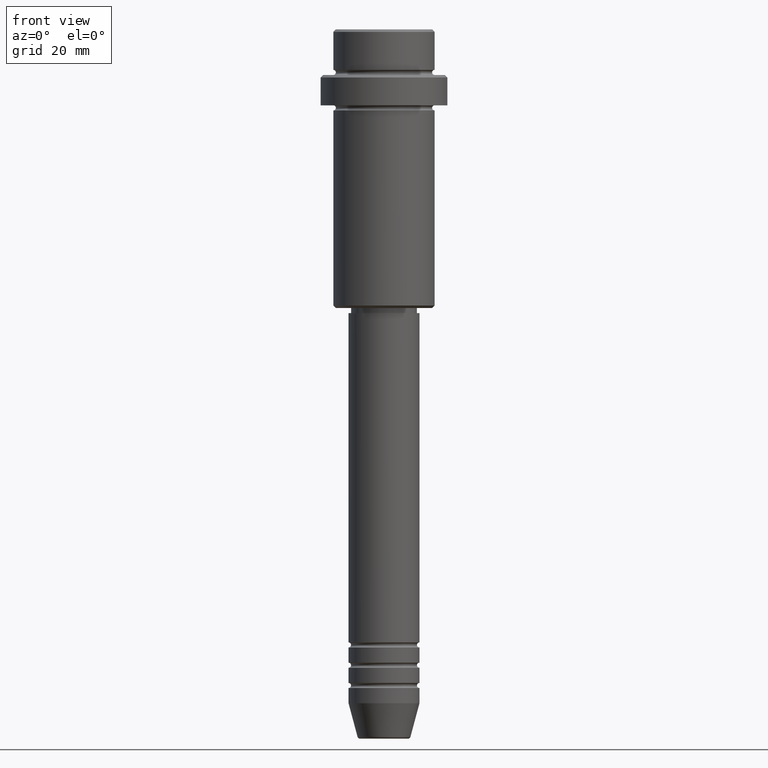
[diagram: clean part render]
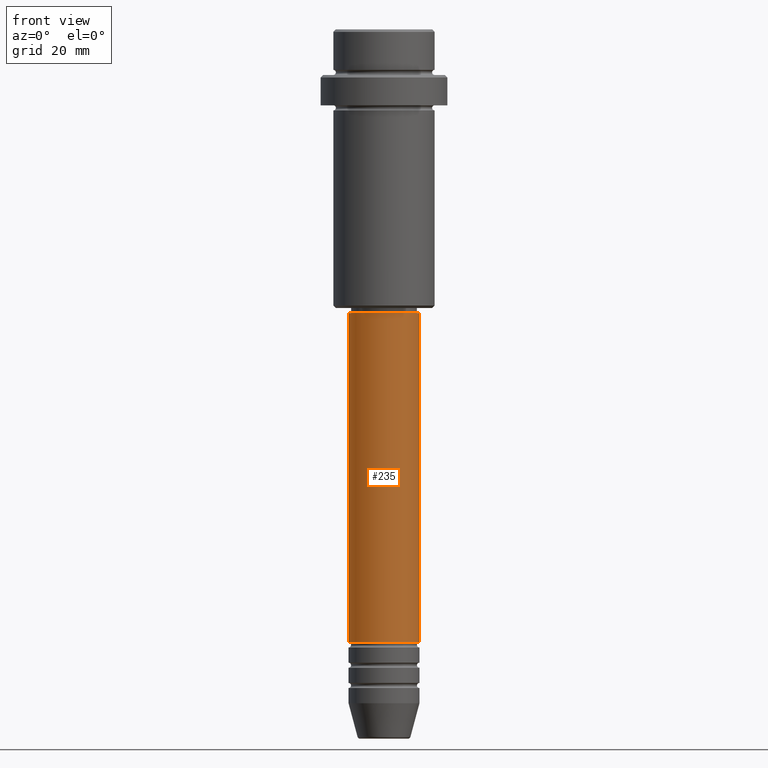
[diagram: same view with one face highlighted and labeled with its STEP entity id]
A machine part, front view. The second image highlights one B-rep face of the part: STEP entity #235.
In plain terms, the highlighted cylindrical surface (edge-blend (fillet) strip) has radius 7 mm, axis along (-0, -0, 1).
Its self-contained STEP definition (entity closure, byte-faithful):
#38 = CIRCLE ( 'NONE', #423, 7.000000000000000000 ) ;
#40 = LINE ( 'NONE', #1030, #440 ) ;
#105 = AXIS2_PLACEMENT_3D ( 'NONE', #416, #751, #846 ) ;
#235 = ADVANCED_FACE ( 'NONE', ( #1088 ), #434, .T. ) ;
#327 = VERTEX_POINT ( 'NONE', #1031 ) ;
#362 = ORIENTED_EDGE ( 'NONE', *, *, #748, .T. ) ;
#392 = CARTESIAN_POINT ( 'NONE',  ( -7.000000000000000000, 8.572527594031473190E-16, 0.000000000000000000 ) ) ;
#416 = CARTESIAN_POINT ( 'NONE',  ( 0.000000000000000000, 0.000000000000000000, 0.000000000000000000 ) ) ;
#423 = AXIS2_PLACEMENT_3D ( 'NONE', #515, #523, #957 ) ;
#434 = CYLINDRICAL_SURFACE ( 'NONE', #105, 7.000000000000000000 ) ;
#440 = VECTOR ( 'NONE', #483, 1000.000000000000000 ) ;
#482 = VERTEX_POINT ( 'NONE', #1303 ) ;
#483 = DIRECTION ( 'NONE',  ( -0.000000000000000000, -0.000000000000000000, 1.000000000000000000 ) ) ;
#515 = CARTESIAN_POINT ( 'NONE',  ( 0.000000000000000000, 0.000000000000000000, -56.00000000000000711 ) ) ;
#523 = DIRECTION ( 'NONE',  ( -0.000000000000000000, -0.000000000000000000, 1.000000000000000000 ) ) ;
#611 = ORIENTED_EDGE ( 'NONE', *, *, #1329, .F. ) ;
#668 = CIRCLE ( 'NONE', #1105, 7.000000000000000000 ) ;
#722 = CARTESIAN_POINT ( 'NONE',  ( 0.000000000000000000, 0.000000000000000000, -120.9999999999999005 ) ) ;
#748 = EDGE_CURVE ( 'NONE', #1370, #1065, #40, .T. ) ;
#751 = DIRECTION ( 'NONE',  ( -0.000000000000000000, -0.000000000000000000, 1.000000000000000000 ) ) ;
#819 = EDGE_CURVE ( 'NONE', #482, #1370, #668, .T. ) ;
#846 = DIRECTION ( 'NONE',  ( 1.000000000000000000, 0.000000000000000000, 0.000000000000000000 ) ) ;
#925 = ORIENTED_EDGE ( 'NONE', *, *, #819, .T. ) ;
#952 = EDGE_CURVE ( 'NONE', #482, #327, #1367, .T. ) ;
#957 = DIRECTION ( 'NONE',  ( 1.000000000000000000, 0.000000000000000000, 0.000000000000000000 ) ) ;
#986 = EDGE_LOOP ( 'NONE', ( #996, #925, #362, #611 ) ) ;
#996 = ORIENTED_EDGE ( 'NONE', *, *, #952, .F. ) ;
#1030 = CARTESIAN_POINT ( 'NONE',  ( 7.000000000000000000, 0.000000000000000000, 0.000000000000000000 ) ) ;
#1031 = CARTESIAN_POINT ( 'NONE',  ( -7.000000000000000000, 8.572527594031473190E-16, -56.00000000000000711 ) ) ;
#1053 = DIRECTION ( 'NONE',  ( 1.000000000000000000, 0.000000000000000000, 0.000000000000000000 ) ) ;
#1065 = VERTEX_POINT ( 'NONE', #1414 ) ;
#1088 = FACE_OUTER_BOUND ( 'NONE', #986, .T. ) ;
#1105 = AXIS2_PLACEMENT_3D ( 'NONE', #722, #1160, #1053 ) ;
#1140 = DIRECTION ( 'NONE',  ( -0.000000000000000000, -0.000000000000000000, 1.000000000000000000 ) ) ;
#1160 = DIRECTION ( 'NONE',  ( -0.000000000000000000, -0.000000000000000000, 1.000000000000000000 ) ) ;
#1250 = VECTOR ( 'NONE', #1140, 1000.000000000000000 ) ;
#1303 = CARTESIAN_POINT ( 'NONE',  ( -7.000000000000000000, 8.572527594031473190E-16, -120.9999999999999005 ) ) ;
#1329 = EDGE_CURVE ( 'NONE', #327, #1065, #38, .T. ) ;
#1367 = LINE ( 'NONE', #392, #1250 ) ;
#1370 = VERTEX_POINT ( 'NONE', #1392 ) ;
#1392 = CARTESIAN_POINT ( 'NONE',  ( 7.000000000000000000, 0.000000000000000000, -120.9999999999999005 ) ) ;
#1414 = CARTESIAN_POINT ( 'NONE',  ( 7.000000000000000000, 0.000000000000000000, -56.00000000000000711 ) ) ;